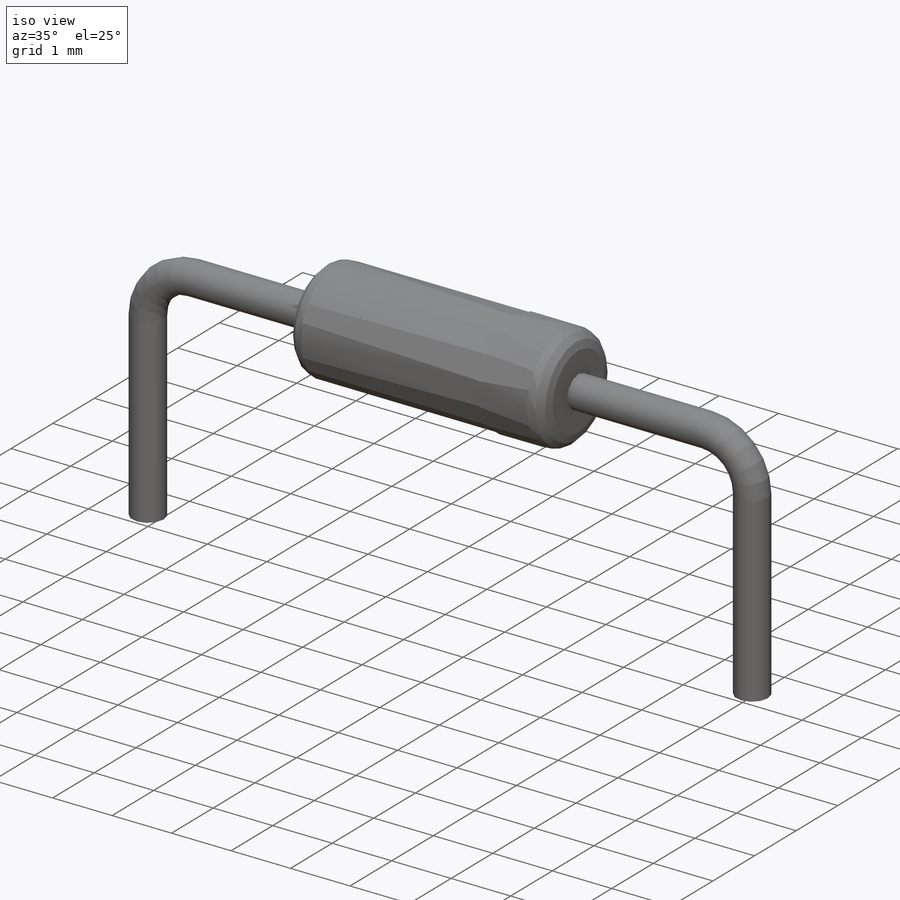
[diagram: iso view]
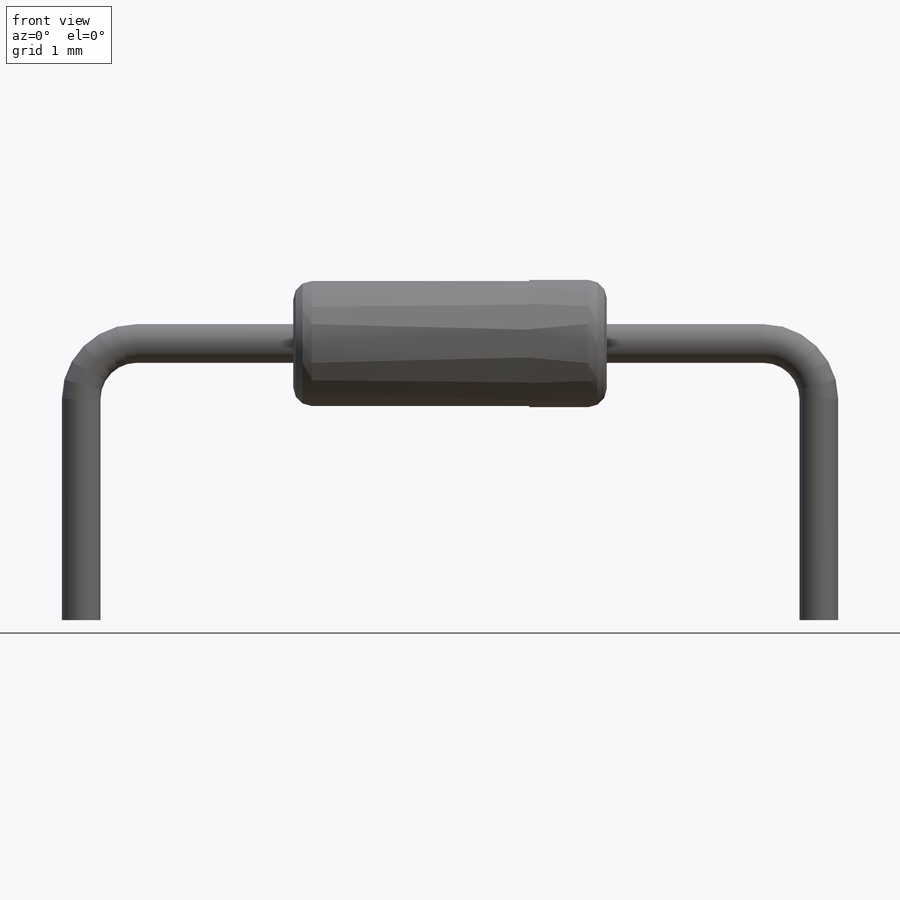
[diagram: front view]
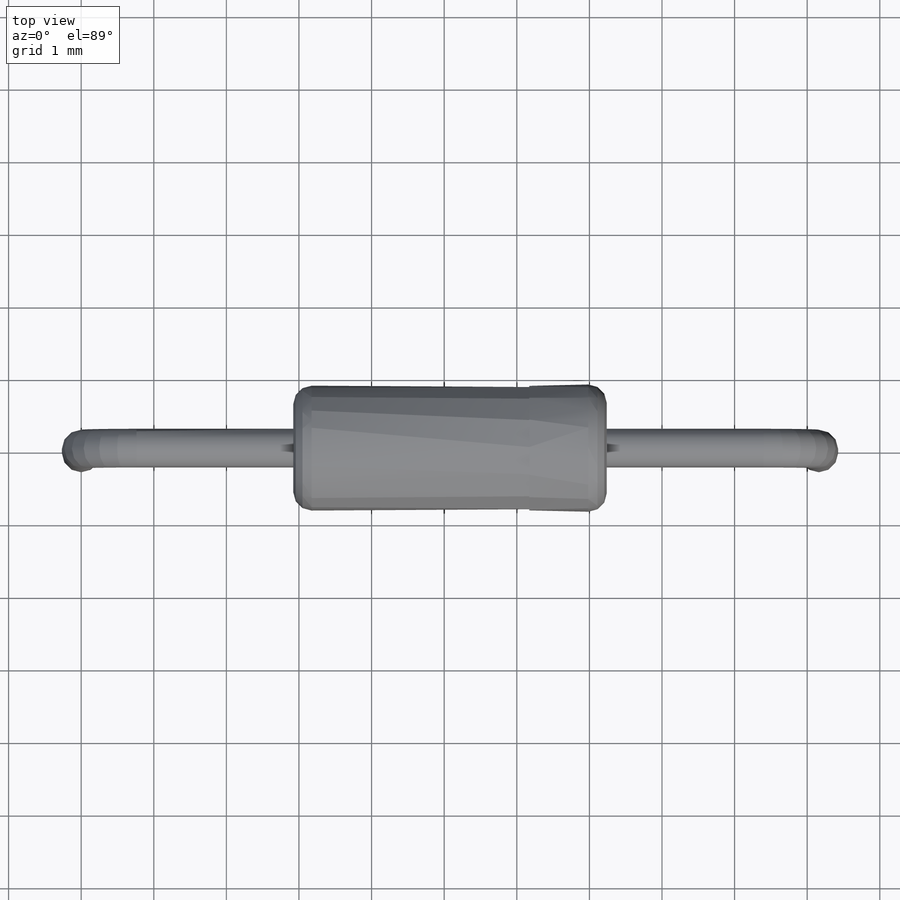
[diagram: top view]
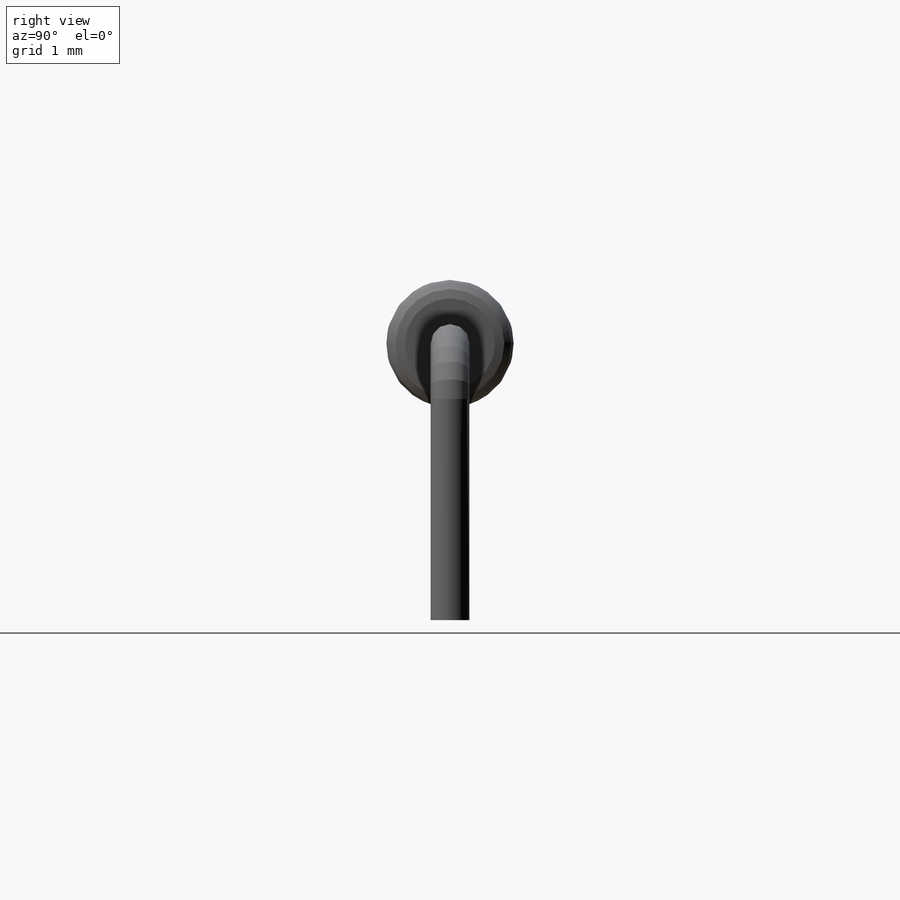
[diagram: right view]
SOLIDWORKS PART (.sldprt)
format: sldprt  version: not decoded by parser v0  size: 171,520 bytes
history: native  units: mm
features: plane x5, sketch x4, extrude x2, material x1, sweep x1, mirror x1, fillet x1 (+11 scaffold rows collapsed)
feature tree (26):
  scaffold x11  (default folders/planes/origin — collapsed)
  material  "Material <not specified>"
  plane  "x/y"
  plane  "x/z"
  plane  "y/z"
  sketch  "Sketch2"  dims[c1.D4=0.762mm c1.D1=3.048mm c1.D2=2.54mm c1.D3=1.778mm c2.D1=3.048mm c2.D2=2.54mm c2.D3=2.921mm]
  plane  "Plane1"
  sketch  "Sketch3"  dims[D1=0.533mm]
  sweep  "Base-Sweep"
  sketch  "Sketch4"  dims[D1=1.72mm]
  extrude  "Boss-Extrude1"  Depth=2.159mm
  mirror  "Boss-Mirror1"
  plane  "Plane2"  Offset=3.81mm
  sketch  "Sketch5"  dims[D1=1.7526mm]
  extrude  "Boss-Extrude2"  Depth=1.0668mm
  fillet  "Fillet2"  Radius=0.254mm
decode coverage: 7 of 9 modeling features carry decoded parameters
note: suppression state not decoded; provenance and decode notes live in map.json
